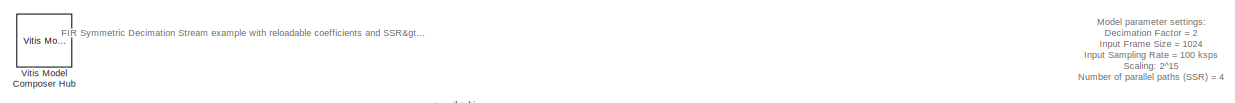
[diagram: root canvas - part 1/3, top center region]
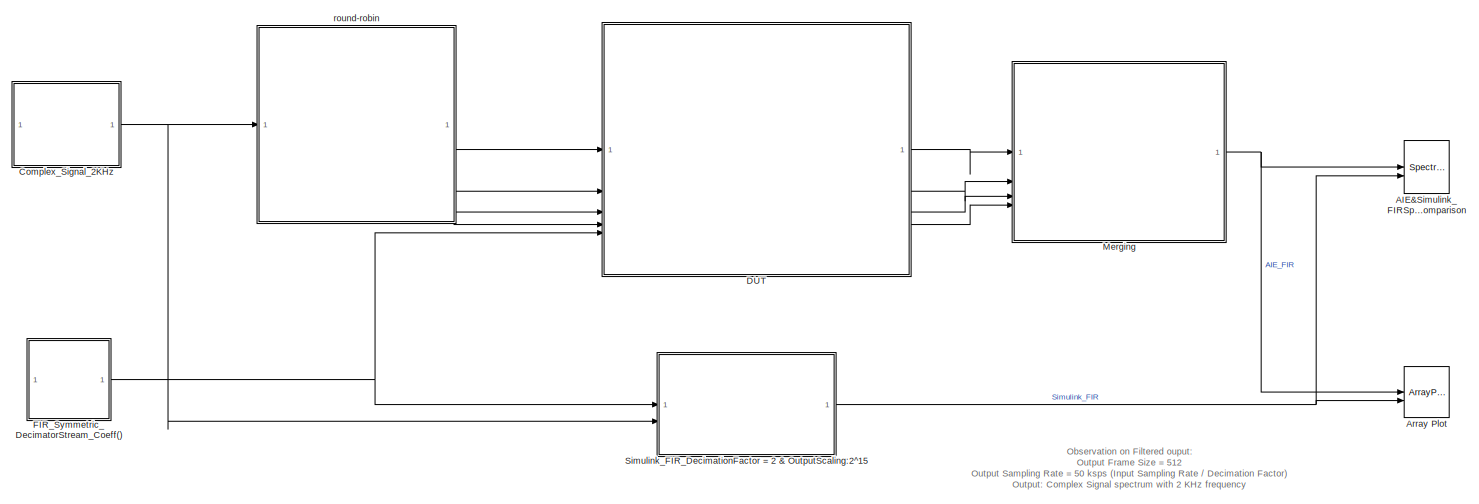
[diagram: root canvas - part 2/3, full width, middle band]
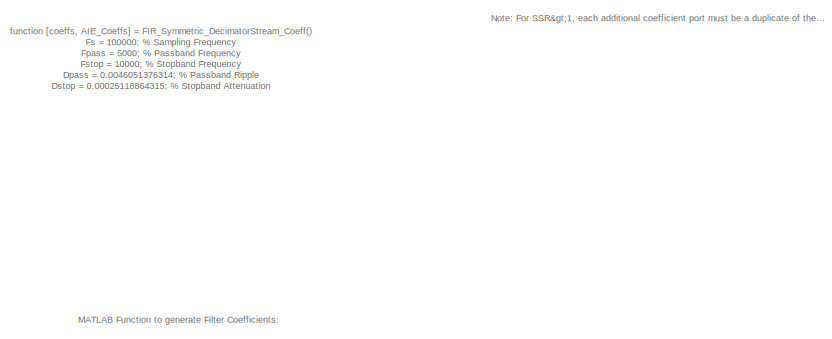
[diagram: root canvas - part 3/3, bottom left region]
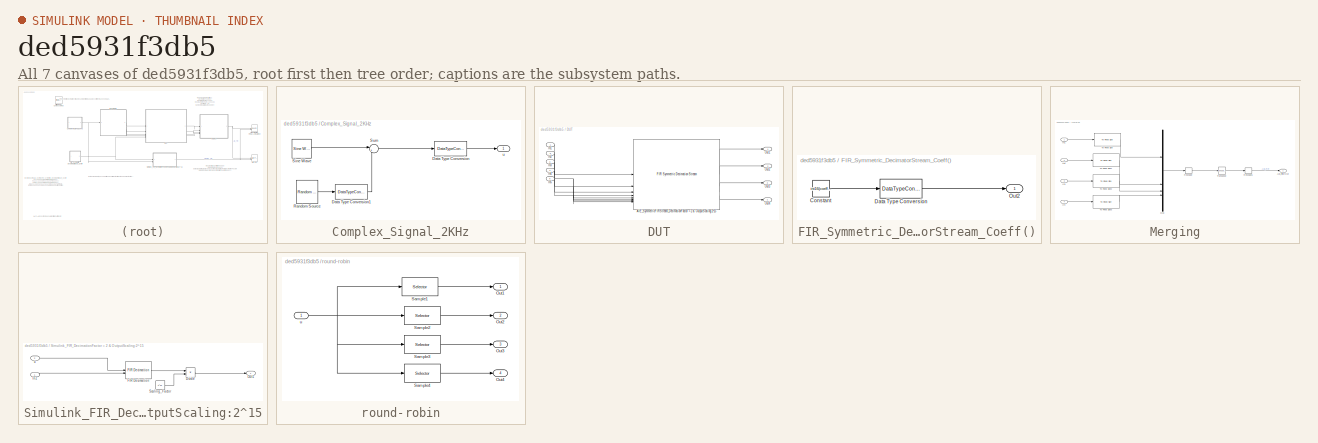
[diagram: thumbnail index - all 7 canvases of the model, root first then tree order]
MODEL slx_ded5931f3db5
KIND model
CONFIG AbsTol = auto
CONFIG EnableMultiTasking = off
CONFIG FixedStep = auto
CONFIG MaxStep = auto
CONFIG MinStep = auto
CONFIG PostLoadFcn = Fs = 100000;  % Sampling Frequency\nFpass = 5000;              % Passband Frequency\nFstop = 10000;             % Stopband Frequency\nDpass = 0.0046051376314;   % Passband Ripple\nDstop = 0.00025118864315;  % Stopband Attenuation\ndens  = 16;                % Density Factor\n% Calculate the order from the parameters using FIRPMORD.\n[N, Fo, Ao, W] = firpmord([Fpass, Fstop]/(Fs/2), [1 0], [Dpass, Dstop]);...<+134ch>
CONFIG RelTol = 1e-3
CONFIG SampleTimeConstraint = Unconstrained
CONFIG SolverName = VariableStepAuto
CONFIG StartTime = 0.0
CONFIG StopTime = 8192/100e3
BLOCK [SpectrumAnalyzer] AIE&Simulink_FIRSpectrum_Comparison
  AllowFFTLengthLessThanSamplesPerUpdate = on
  AveragingMethod = Exponential
  DefaultConfigurationName = spbscopes.SpectrumAnalyzerBlockCfg
  FrequencyInputRBWFromPort = 0
  FrequencyInputRBWPort = 0
  FrequencyVectorFromPort = 0
  FrequencyVectorPort = 0
  GraphicalSettings = {"GraphicalSettings":{"Style":{"BackgroundColor":[0.12941176470588237,0.12941176470588237,0.12941176470588237],"AxesColor":[0,0,0],"LabelsColor":[0.6862745098039216,0.6862745098039216,0.6862745098039216],"PreserveColors":false,"Visible":[true,true],"LineStyle":["-","-"],"LineColor":[[1,1,0.06666666666666667],[0.07450980392156863,0.6235294117647059,1]],"LineWidth":[1,1],"Marker":["none","none"],"Fo...<+933ch>
  IsFrequencyInputMode = 0
  NumInputPorts = 2
  SampleRate = 50000
  ScopeFrameLocation = window
  ScopeSpecificationString = spbscopes.SpectrumAnalyzerBlockCfg('CurrentConfiguration', extmgr.ConfigurationSet(extmgr.Configuration('Core','General UI',true),extmgr.Configuration('Core','Source UI',true),extmgr.Configuration('Sources','WiredSimulink',true),extmgr.Configuration('Visuals','Spectrum',true,'AxesProperties',struct('Color',{[0 0 0],[0 0 0]},'XColor',{[0.686274509803922 0.686274509803922 0.686274509803922],[0.68627...<+2436ch>
  ShowLegend = on
  Span = 49999.99999999999
  StartFrequency = -24999.999999999996
  StopFrequency = 24999.999999999996
  Visible = on
  WasSavedAsWebScope = on
  WindowPosition = [530.000000,85.000000,1280.000000,600.000000,]
  YLimits = [33.2677,123.2864]
BLOCK [ArrayPlot] Array Plot
  GraphicalSettings = {"Style":{"BackgroundColor":[0.12941176470588237,0.12941176470588237,0.12941176470588237],"AxesColor":[0.07058823529411765,0.07058823529411765,0.07058823529411765],"LabelsColor":[0.8509803921568627,0.8509803921568627,0.8509803921568627],"PreserveColors":false,"Visible":[true,true,true,true],"LineStyle":["-","-","-","-"],"LineColor":[[1,0.9098039215686274,0.39215686274509803],[0.14901960784313725,0...<+782ch>
  NumInputPorts = 2
  PlotType = Line
  ScopeFrameLocation = window
  ShowLegend = on
  Visible = on
  WasSavedAsWebScope = on
  WindowPosition = [585.000000,453.000000,800.000000,500.000000,]
  YLimits = [-21674.125 21597.125]
BLOCK [SubSystem] Complex_Signal_2KHz
BLOCK [DataTypeConversion] Complex_Signal_2KHz/Data Type Conversion
  ConvertRealWorld = Stored Integer (SI)
  OutDataTypeStr = int16
  OutMax = [1]
  OutMin = [-1]
  RndMeth = Floor
  SaturateOnIntegerOverflow = off
BLOCK [DataTypeConversion] Complex_Signal_2KHz/Data Type Conversion1
  OutDataTypeStr = fixdt(1,16,14)
  RndMeth = Floor
  SaturateOnIntegerOverflow = off
BLOCK [Reference] Complex_Signal_2KHz/Random Source  REF=dspsrcs4/Random
Source
  SourceBlock = dspsrcs4/Random\nSource
  SourceType = dsp.simulink.RandomSource
BLOCK [Reference] Complex_Signal_2KHz/Sine Wave  REF=dspsrcs4/Sine Wave
  SourceBlock = dspsrcs4/Sine Wave
  SourceType = Sine Wave
BLOCK [Sum] Complex_Signal_2KHz/Sum
  Inputs = |++
BLOCK [Outport] Complex_Signal_2KHz/u
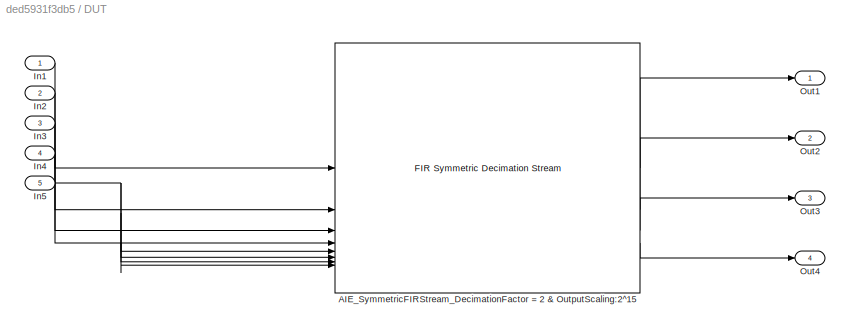
BLOCK [SubSystem] DUT
BLOCK [Reference] DUT/AIE_SymmetricFIRStream_DecimationFactor = 2 & OutputScaling:2^15   REF=aieDSP/FIR Symmetric Decimation Stream
  SourceBlock = aieDSP/FIR Symmetric Decimation Stream
  SourceType = FIR Symmetric Decimation Stream
BLOCK [Inport] DUT/In1
BLOCK [Inport] DUT/In2
  Port = 2
BLOCK [Inport] DUT/In3
  Port = 3
BLOCK [Inport] DUT/In4
  Port = 4
BLOCK [Inport] DUT/In5
  Port = 5
BLOCK [Outport] DUT/Out1
BLOCK [Outport] DUT/Out2
  Port = 2
BLOCK [Outport] DUT/Out3
  Port = 3
BLOCK [Outport] DUT/Out4
  Port = 4
BLOCK [SubSystem] FIR_Symmetric_DecimatorStream_Coeff()
BLOCK [Constant] FIR_Symmetric_DecimatorStream_Coeff()/Constant
  Value = int16(coeffs*2^15)
BLOCK [DataTypeConversion] FIR_Symmetric_DecimatorStream_Coeff()/Data Type Conversion
  ConvertRealWorld = Stored Integer (SI)
  OutDataTypeStr = int16
  OutMax = [1]
  OutMin = [-1]
  RndMeth = Floor
  SaturateOnIntegerOverflow = off
BLOCK [Outport] FIR_Symmetric_DecimatorStream_Coeff()/Out2
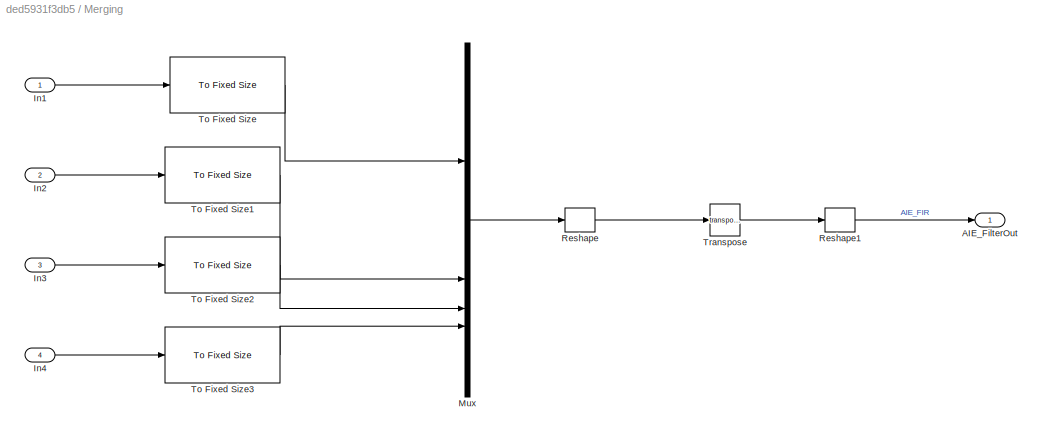
BLOCK [SubSystem] Merging
BLOCK [Outport] Merging/AIE_FilterOut
BLOCK [Inport] Merging/In1
BLOCK [Inport] Merging/In2
  Port = 2
BLOCK [Inport] Merging/In3
  Port = 3
BLOCK [Inport] Merging/In4
  Port = 4
BLOCK [Mux] Merging/Mux
  DisplayOption = bar
BLOCK [Reshape] Merging/Reshape
  OutputDimensionality = Customize
  OutputDimensions = [128, 4]
BLOCK [Reshape] Merging/Reshape1
  OutputDimensions = [1, 10]
BLOCK [Reference] Merging/To Fixed Size  REF=aieUtilities/To Fixed Size
  SourceBlock = aieUtilities/To Fixed Size
  SourceType = To Fixed Size
BLOCK [Reference] Merging/To Fixed Size1  REF=aieUtilities/To Fixed Size
  SourceBlock = aieUtilities/To Fixed Size
  SourceType = To Fixed Size
BLOCK [Reference] Merging/To Fixed Size2  REF=aieUtilities/To Fixed Size
  SourceBlock = aieUtilities/To Fixed Size
  SourceType = To Fixed Size
BLOCK [Reference] Merging/To Fixed Size3  REF=aieUtilities/To Fixed Size
  SourceBlock = aieUtilities/To Fixed Size
  SourceType = To Fixed Size
BLOCK [Math] Merging/Transpose
  Operator = transpose
BLOCK [SubSystem] Simulink_FIR_DecimationFactor = 2 & OutputScaling:2^15
BLOCK [Product] Simulink_FIR_DecimationFactor = 2 & OutputScaling:2^15/Divide
  Inputs = */
  OutDataTypeStr = int16
BLOCK [Reference] Simulink_FIR_DecimationFactor = 2 & OutputScaling:2^15/FIR Decimation  REF=dspmlti4/FIR
Decimation
  SourceBlock = dspmlti4/FIR\nDecimation
  SourceType = FIR Decimation
  UserDataPersistent = on
BLOCK [Inport] Simulink_FIR_DecimationFactor = 2 & OutputScaling:2^15/In2
BLOCK [Outport] Simulink_FIR_DecimationFactor = 2 & OutputScaling:2^15/Out1
BLOCK [Constant] Simulink_FIR_DecimationFactor = 2 & OutputScaling:2^15/Scaling_Factor
  OutDataTypeStr = int32
  Value = 2^15
BLOCK [Inport] Simulink_FIR_DecimationFactor = 2 & OutputScaling:2^15/u
  Port = 2
BLOCK [Reference] Vitis Model Composer Hub  REF=vmcUtilities/Vitis Model Composer Hub
  SourceBlock = vmcUtilities/Vitis Model Composer Hub
  SourceType = VMC Hub
  Tag = genX
  UserDataPersistent = on
BLOCK [SubSystem] round-robin
BLOCK [Outport] round-robin/Out1
BLOCK [Outport] round-robin/Out2
  Port = 2
BLOCK [Outport] round-robin/Out3
  Port = 3
BLOCK [Outport] round-robin/Out4
  Port = 4
BLOCK [Selector] round-robin/Sample1
  IndexOptions = Index vector (dialog)
  Indices = 1:4:1024
  InputPortWidth = 1024
  OutputSizes = 1
BLOCK [Selector] round-robin/Sample2
  IndexOptions = Index vector (dialog)
  Indices = 2:4:1024
  InputPortWidth = 1024
  OutputSizes = 1
BLOCK [Selector] round-robin/Sample3
  IndexOptions = Index vector (dialog)
  Indices = 3:4:1024
  InputPortWidth = 1024
  OutputSizes = 1
BLOCK [Selector] round-robin/Sample4
  IndexOptions = Index vector (dialog)
  Indices = 4:4:1024
  InputPortWidth = 1024
  OutputSizes = 1
BLOCK [Inport] round-robin/u
ANNOTATION (root): function [coeffs, AIE_Coeffs] = FIR_Symmetric_DecimatorStream_Coeff() Fs = 100000; % Sampling Frequency Fpass = 5000; % Passband Frequency Fstop = 10000; % Stopband Frequency Dpass = 0.0046051376314; % Passband Ripple Dstop = 0.00025118864315; % Stopband Attenuation dens = 16; % Density Factor % Calculate the order from the parameters using FIRPMORD. [N, Fo, Ao, W] = firpmord([Fpass, Fstop]/(Fs/2)...<+163ch>
ANNOTATION (root): Model parameter settings: Decimation Factor = 2 Input Frame Size = 1024 Input Sampling Rate = 100 ksps Scaling: 2^15 Number of parallel paths (SSR) = 4 Input: Complex Signal with 2 KHz frequency
ANNOTATION (root): Observation on Filtered ouput: Output Frame Size = 512 Output Sampling Rate = 50 ksps (Input Sampling Rate / Decimation Factor) Output: Complex Signal spectrum with 2 KHz frequency
ANNOTATION (root): MATLAB Function to generate Filter Coefficients:
ANNOTATION (root): Note: For SSR>1, each additional coefficient port must be a duplicate of the complete coefficient array.
ANNOTATION (root): FIR Symmetric Decimation Stream example with reloadable coefficients and SSR>1
LINE Complex_Signal_2KHz/Data Type Conversion1:1 -> Complex_Signal_2KHz/Sum:2
LINE Complex_Signal_2KHz/Data Type Conversion:1 -> Complex_Signal_2KHz/u:1
LINE Complex_Signal_2KHz/Random Source:1 -> Complex_Signal_2KHz/Data Type Conversion1:1
LINE Complex_Signal_2KHz/Sine Wave:1 -> Complex_Signal_2KHz/Sum:1
LINE Complex_Signal_2KHz/Sum:1 -> Complex_Signal_2KHz/Data Type Conversion:1
NET Complex_Signal_2KHz:1 -> Simulink_FIR_DecimationFactor = 2 & OutputScaling:2^15:2, round-robin:1
LINE DUT/AIE_SymmetricFIRStream_DecimationFactor = 2 & OutputScaling:2^15 :1 -> DUT/Out1:1
LINE DUT/AIE_SymmetricFIRStream_DecimationFactor = 2 & OutputScaling:2^15 :2 -> DUT/Out2:1
LINE DUT/AIE_SymmetricFIRStream_DecimationFactor = 2 & OutputScaling:2^15 :3 -> DUT/Out3:1
LINE DUT/AIE_SymmetricFIRStream_DecimationFactor = 2 & OutputScaling:2^15 :4 -> DUT/Out4:1
LINE DUT/In1:1 -> DUT/AIE_SymmetricFIRStream_DecimationFactor = 2 & OutputScaling:2^15 :1
LINE DUT/In2:1 -> DUT/AIE_SymmetricFIRStream_DecimationFactor = 2 & OutputScaling:2^15 :2
LINE DUT/In3:1 -> DUT/AIE_SymmetricFIRStream_DecimationFactor = 2 & OutputScaling:2^15 :3
LINE DUT/In4:1 -> DUT/AIE_SymmetricFIRStream_DecimationFactor = 2 & OutputScaling:2^15 :4
NET DUT/In5:1 -> DUT/AIE_SymmetricFIRStream_DecimationFactor = 2 & OutputScaling:2^15 :5, DUT/AIE_SymmetricFIRStream_DecimationFactor = 2 & OutputScaling:2^15 :6, DUT/AIE_SymmetricFIRStream_DecimationFactor = 2 & OutputScaling:2^15 :7, DUT/AIE_SymmetricFIRStream_DecimationFactor = 2 & OutputScaling:2^15 :8
LINE DUT:1 -> Merging:1
LINE DUT:2 -> Merging:2
LINE DUT:3 -> Merging:3
LINE DUT:4 -> Merging:4
LINE FIR_Symmetric_DecimatorStream_Coeff()/Constant:1 -> FIR_Symmetric_DecimatorStream_Coeff()/Data Type Conversion:1
LINE FIR_Symmetric_DecimatorStream_Coeff()/Data Type Conversion:1 -> FIR_Symmetric_DecimatorStream_Coeff()/Out2:1
NET FIR_Symmetric_DecimatorStream_Coeff():1 -> DUT:5, Simulink_FIR_DecimationFactor = 2 & OutputScaling:2^15:1
LINE Merging/In1:1 -> Merging/To Fixed Size:1
LINE Merging/In2:1 -> Merging/To Fixed Size1:1
LINE Merging/In3:1 -> Merging/To Fixed Size2:1
LINE Merging/In4:1 -> Merging/To Fixed Size3:1
LINE Merging/Mux:1 -> Merging/Reshape:1
LINE Merging/Reshape1:1 -> Merging/AIE_FilterOut:1
LINE Merging/Reshape:1 -> Merging/Transpose:1
LINE Merging/To Fixed Size1:1 -> Merging/Mux:2
LINE Merging/To Fixed Size2:1 -> Merging/Mux:3
LINE Merging/To Fixed Size3:1 -> Merging/Mux:4
LINE Merging/To Fixed Size:1 -> Merging/Mux:1
LINE Merging/Transpose:1 -> Merging/Reshape1:1
NET Merging:1 -> AIE&Simulink_FIRSpectrum_Comparison:1, Array Plot:1
LINE Simulink_FIR_DecimationFactor = 2 & OutputScaling:2^15/Divide:1 -> Simulink_FIR_DecimationFactor = 2 & OutputScaling:2^15/Out1:1
LINE Simulink_FIR_DecimationFactor = 2 & OutputScaling:2^15/FIR Decimation:1 -> Simulink_FIR_DecimationFactor = 2 & OutputScaling:2^15/Divide:1
LINE Simulink_FIR_DecimationFactor = 2 & OutputScaling:2^15/In2:1 -> Simulink_FIR_DecimationFactor = 2 & OutputScaling:2^15/FIR Decimation:2
LINE Simulink_FIR_DecimationFactor = 2 & OutputScaling:2^15/Scaling_Factor:1 -> Simulink_FIR_DecimationFactor = 2 & OutputScaling:2^15/Divide:2
LINE Simulink_FIR_DecimationFactor = 2 & OutputScaling:2^15/u:1 -> Simulink_FIR_DecimationFactor = 2 & OutputScaling:2^15/FIR Decimation:1
NET Simulink_FIR_DecimationFactor = 2 & OutputScaling:2^15:1 -> AIE&Simulink_FIRSpectrum_Comparison:2, Array Plot:2
LINE round-robin/Sample1:1 -> round-robin/Out1:1
LINE round-robin/Sample2:1 -> round-robin/Out2:1
LINE round-robin/Sample3:1 -> round-robin/Out3:1
LINE round-robin/Sample4:1 -> round-robin/Out4:1
NET round-robin/u:1 -> round-robin/Sample1:1, round-robin/Sample2:1, round-robin/Sample3:1, round-robin/Sample4:1
LINE round-robin:1 -> DUT:1
LINE round-robin:2 -> DUT:2
LINE round-robin:3 -> DUT:3
LINE round-robin:4 -> DUT:4
note: NET lines group one-source signal fan-out (src -> all destinations, sorted); 1:1 wires keep LINE
